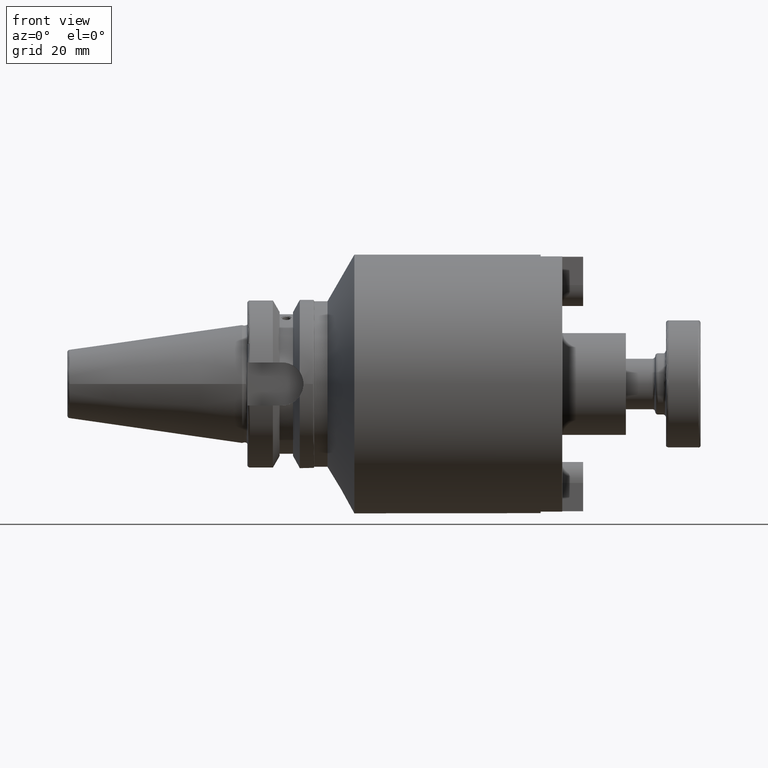
[diagram: clean part render]
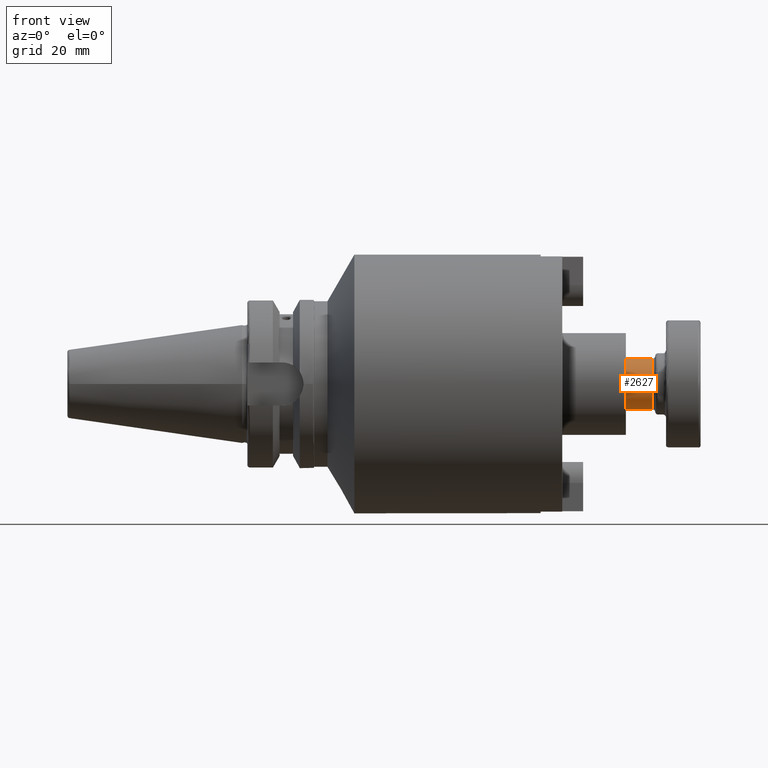
[diagram: same view with one face highlighted and labeled with its STEP entity id]
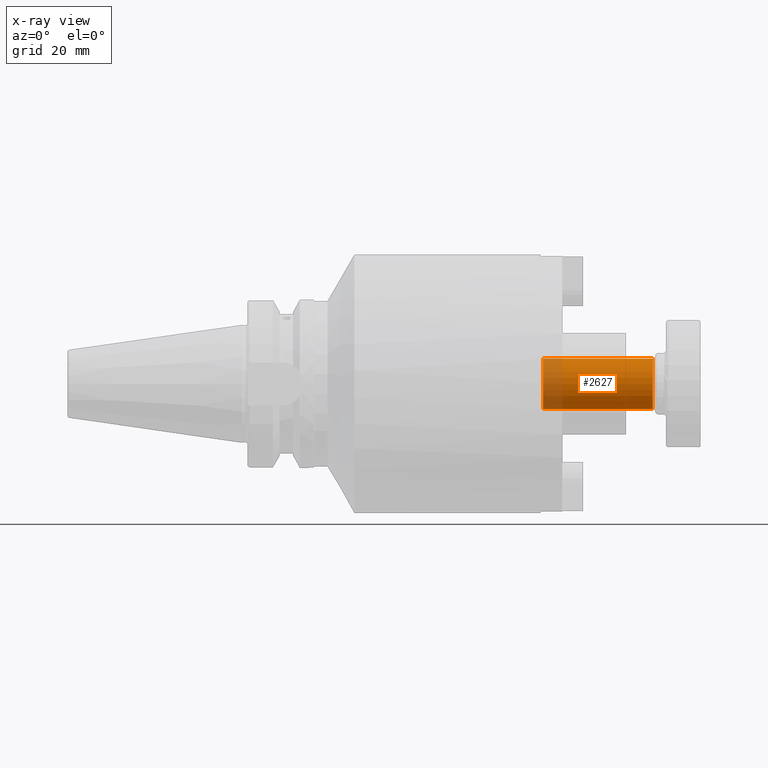
[diagram: x-ray of the same camera — body ghosted, the highlighted face saturated]
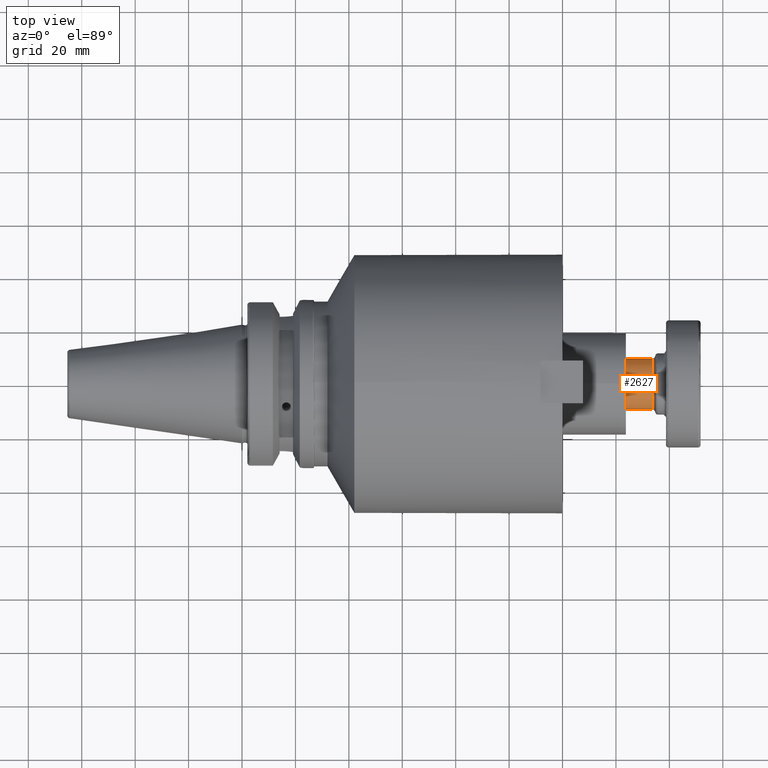
[diagram: same view with one face highlighted and labeled with its STEP entity id]
A machine part, front view. The second image highlights one B-rep face of the part: STEP entity #2627.
The next image is the same camera in x-ray: the body ghosted, the highlighted face saturated — about 18% of this face is hidden behind the body in this view.
A second angle (top view) of the same face is appended — the face is thin or edge-on in the first view.
In plain terms, the highlighted cylindrical surface (bore or boss wall) has radius 9.525 mm, axis along (-1, 0, 0).
Its self-contained STEP definition (entity closure, byte-faithful):
#609=CYLINDRICAL_SURFACE('',#3067,9.52500000000001);
#728=CIRCLE('',#3065,9.52500000000001);
#729=CIRCLE('',#3066,9.52500000000001);
#730=CIRCLE('',#3068,9.52500000000001);
#884=FACE_OUTER_BOUND('',#1034,.T.);
#1034=EDGE_LOOP('',(#2402,#2403,#2404,#2405,#2406));
#1181=LINE('',#5121,#1318);
#1318=VECTOR('',#3816,9.52500000000001);
#1509=VERTEX_POINT('',#5114);
#1510=VERTEX_POINT('',#5116);
#1511=VERTEX_POINT('',#5120);
#1811=EDGE_CURVE('',#1509,#1510,#728,.T.);
#1812=EDGE_CURVE('',#1510,#1509,#729,.T.);
#1813=EDGE_CURVE('',#1510,#1511,#1181,.T.);
#1814=EDGE_CURVE('',#1511,#1511,#730,.T.);
#2402=ORIENTED_EDGE('',*,*,#1811,.F.);
#2403=ORIENTED_EDGE('',*,*,#1812,.F.);
#2404=ORIENTED_EDGE('',*,*,#1813,.T.);
#2405=ORIENTED_EDGE('',*,*,#1814,.F.);
#2406=ORIENTED_EDGE('',*,*,#1813,.F.);
#2627=ADVANCED_FACE('',(#884),#609,.T.);
#3065=AXIS2_PLACEMENT_3D('',#5117,#3810,#3811);
#3066=AXIS2_PLACEMENT_3D('',#5118,#3812,#3813);
#3067=AXIS2_PLACEMENT_3D('',#5119,#3814,#3815);
#3068=AXIS2_PLACEMENT_3D('',#5122,#3817,#3818);
#3810=DIRECTION('center_axis',(1.,0.,0.));
#3811=DIRECTION('ref_axis',(0.,-1.,0.));
#3812=DIRECTION('center_axis',(1.,0.,0.));
#3813=DIRECTION('ref_axis',(0.,-1.,0.));
#3814=DIRECTION('center_axis',(1.,0.,0.));
#3815=DIRECTION('ref_axis',(0.,1.,0.));
#3816=DIRECTION('',(-1.,0.,0.));
#3817=DIRECTION('center_axis',(-1.,0.,0.));
#3818=DIRECTION('ref_axis',(0.,1.,-1.60812264967664E-16));
#5114=CARTESIAN_POINT('',(59.,9.52500000000001,1.16647607618785E-15));
#5116=CARTESIAN_POINT('',(59.,-9.52500000000001,-1.16647607618785E-15));
#5117=CARTESIAN_POINT('Origin',(59.,0.,0.));
#5118=CARTESIAN_POINT('Origin',(59.,0.,0.));
#5119=CARTESIAN_POINT('Origin',(38.5,0.,0.));
#5120=CARTESIAN_POINT('',(17.999843743896,-9.52500000000001,2.69821290000485E-15));
#5121=CARTESIAN_POINT('',(38.5,-9.52500000000001,-1.16647607618785E-15));
#5122=CARTESIAN_POINT('Origin',(17.999843743896,0.,0.));